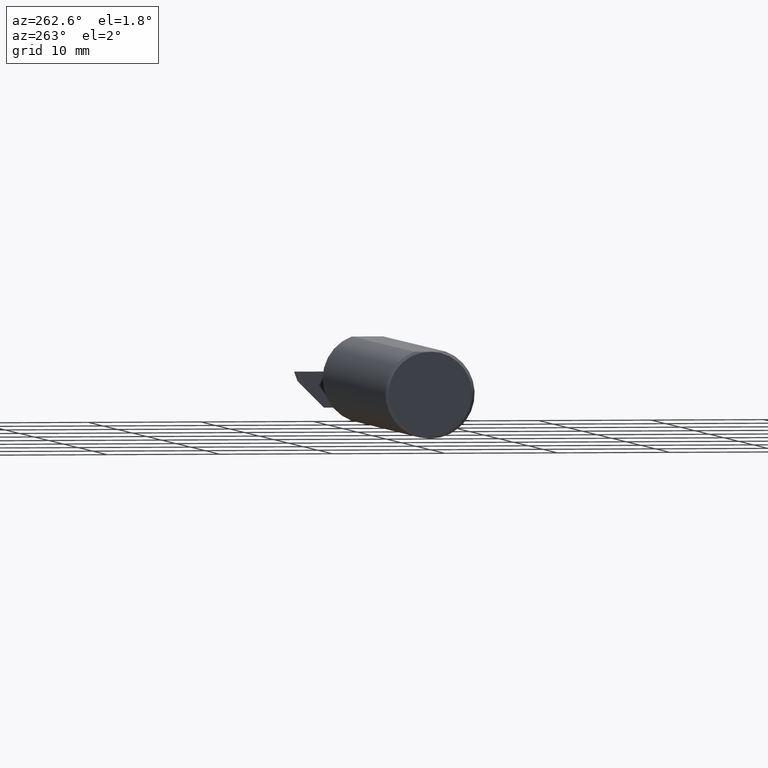
[diagram: clean part render]
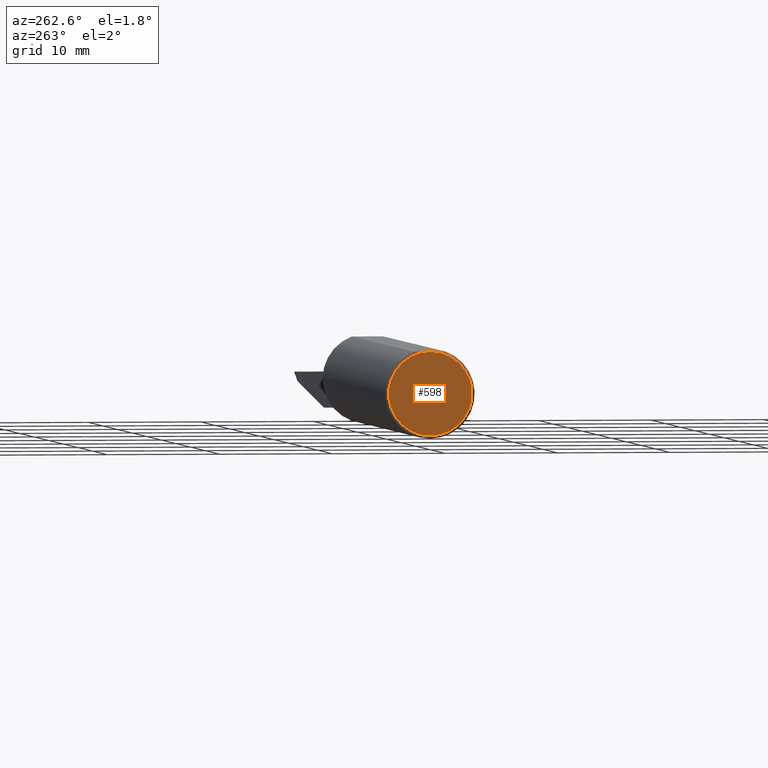
[diagram: same view with one face highlighted and labeled with its STEP entity id]
A machine part, auxiliary view. The second image highlights one B-rep face of the part: STEP entity #598.
In plain terms, the highlighted planar face has unit normal (1, 0, 0).
Its self-contained STEP definition (entity closure, byte-faithful):
#43 = DIRECTION ( 'NONE',  ( -1.000000000000000000, -0.000000000000000000, -0.000000000000000000 ) ) ;
#65 = DIRECTION ( 'NONE',  ( -1.000000000000000000, -0.000000000000000000, -0.000000000000000000 ) ) ;
#82 = DIRECTION ( 'NONE',  ( 1.000000000000000000, 0.000000000000000000, 0.000000000000000000 ) ) ;
#85 = CARTESIAN_POINT ( 'NONE',  ( 0.000000000000000000, 0.000000000000000000, 0.000000000000000000 ) ) ;
#94 = DIRECTION ( 'NONE',  ( 0.000000000000000000, 0.000000000000000000, -1.000000000000000000 ) ) ;
#146 = DIRECTION ( 'NONE',  ( 0.000000000000000000, 0.000000000000000000, -1.000000000000000000 ) ) ;
#163 = ORIENTED_EDGE ( 'NONE', *, *, #392, .T. ) ;
#167 = AXIS2_PLACEMENT_3D ( 'NONE', #567, #65, #146 ) ;
#210 = ORIENTED_EDGE ( 'NONE', *, *, #282, .T. ) ;
#282 = EDGE_CURVE ( 'NONE', #674, #410, #648, .T. ) ;
#297 = AXIS2_PLACEMENT_3D ( 'NONE', #302, #43, #792 ) ;
#302 = CARTESIAN_POINT ( 'NONE',  ( 0.000000000000000000, 0.000000000000000000, 0.000000000000000000 ) ) ;
#332 = EDGE_LOOP ( 'NONE', ( #163, #210 ) ) ;
#361 = CIRCLE ( 'NONE', #167, 0.1461000000000001187 ) ;
#392 = EDGE_CURVE ( 'NONE', #410, #674, #361, .T. ) ;
#410 = VERTEX_POINT ( 'NONE', #626 ) ;
#477 = PLANE ( 'NONE',  #705 ) ;
#567 = CARTESIAN_POINT ( 'NONE',  ( 0.000000000000000000, 0.000000000000000000, 0.000000000000000000 ) ) ;
#598 = ADVANCED_FACE ( 'NONE', ( #658 ), #477, .F. ) ;
#626 = CARTESIAN_POINT ( 'NONE',  ( 0.000000000000000000, 0.000000000000000000, 0.1460999999999998689 ) ) ;
#648 = CIRCLE ( 'NONE', #297, 0.1461000000000001187 ) ;
#658 = FACE_OUTER_BOUND ( 'NONE', #332, .T. ) ;
#674 = VERTEX_POINT ( 'NONE', #678 ) ;
#678 = CARTESIAN_POINT ( 'NONE',  ( 0.000000000000000000, 0.000000000000000000, -0.1461000000000001187 ) ) ;
#705 = AXIS2_PLACEMENT_3D ( 'NONE', #85, #82, #94 ) ;
#792 = DIRECTION ( 'NONE',  ( 0.000000000000000000, 0.000000000000000000, -1.000000000000000000 ) ) ;